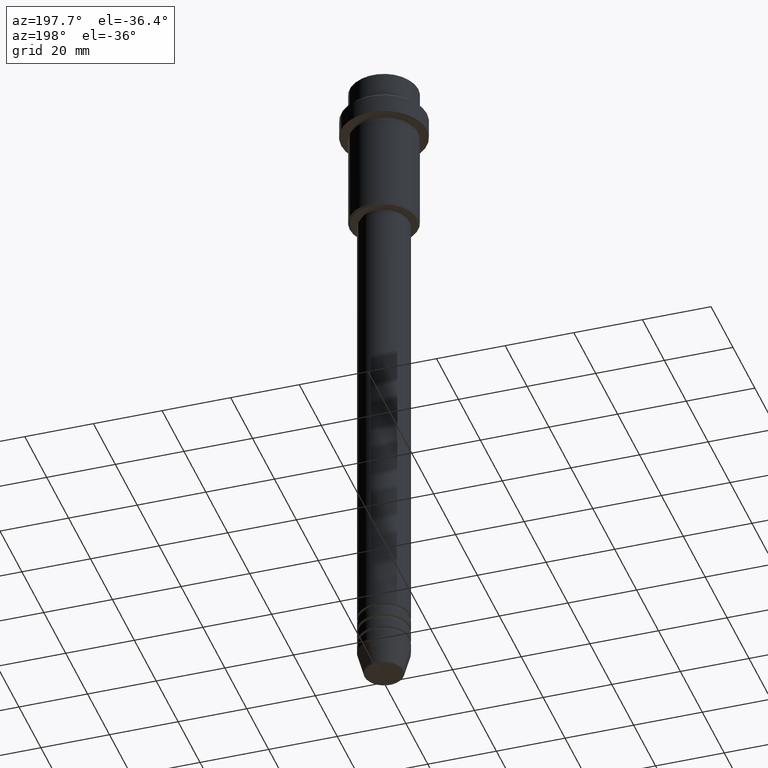
[diagram: clean part render]
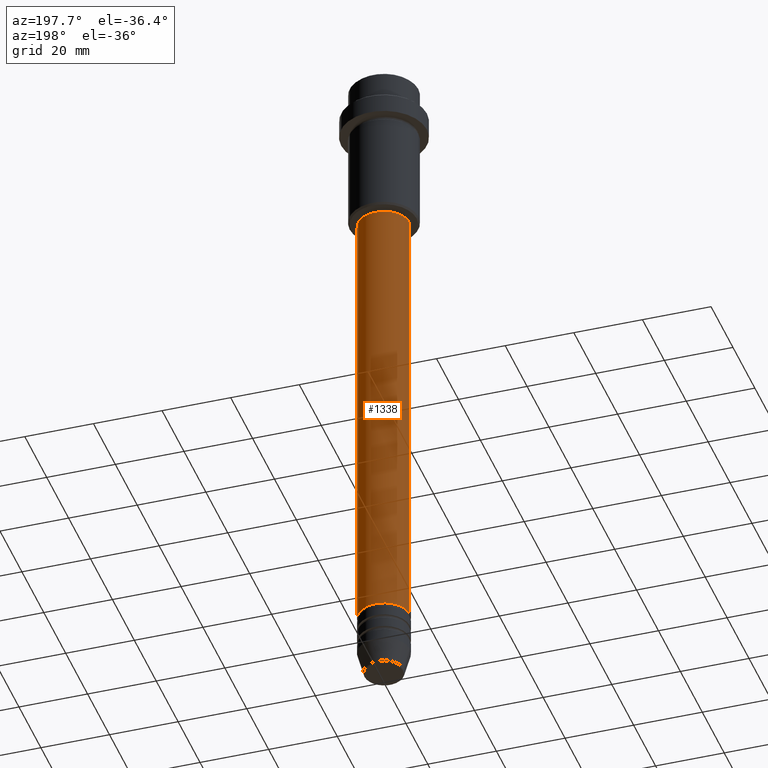
[diagram: same view with one face highlighted and labeled with its STEP entity id]
A machine part, auxiliary view. The second image highlights one B-rep face of the part: STEP entity #1338.
In plain terms, the highlighted cylindrical surface (edge-blend (fillet) strip) has radius 7.5 mm, axis along (-0, -0, 1).
Its self-contained STEP definition (entity closure, byte-faithful):
#18 = VERTEX_POINT ( 'NONE', #375 ) ;
#62 = CARTESIAN_POINT ( 'NONE',  ( 0.000000000000000000, 0.000000000000000000, -46.00000000000001421 ) ) ;
#76 = LINE ( 'NONE', #1397, #731 ) ;
#91 = CYLINDRICAL_SURFACE ( 'NONE', #1176, 7.500000000000000000 ) ;
#140 = ORIENTED_EDGE ( 'NONE', *, *, #947, .F. ) ;
#160 = CARTESIAN_POINT ( 'NONE',  ( 7.500000000000000000, 0.000000000000000000, -46.00000000000001421 ) ) ;
#287 = CIRCLE ( 'NONE', #506, 7.500000000000000000 ) ;
#340 = CARTESIAN_POINT ( 'NONE',  ( 7.500000000000000000, 0.000000000000000000, 0.000000000000000000 ) ) ;
#345 = EDGE_CURVE ( 'NONE', #1159, #565, #817, .T. ) ;
#375 = CARTESIAN_POINT ( 'NONE',  ( -7.500000000000000000, 9.184850993605147944E-16, -46.00000000000001421 ) ) ;
#436 = AXIS2_PLACEMENT_3D ( 'NONE', #1388, #643, #627 ) ;
#491 = DIRECTION ( 'NONE',  ( -0.000000000000000000, -0.000000000000000000, 1.000000000000000000 ) ) ;
#499 = DIRECTION ( 'NONE',  ( -0.000000000000000000, -0.000000000000000000, 1.000000000000000000 ) ) ;
#505 = ORIENTED_EDGE ( 'NONE', *, *, #345, .T. ) ;
#506 = AXIS2_PLACEMENT_3D ( 'NONE', #62, #491, #926 ) ;
#565 = VERTEX_POINT ( 'NONE', #727 ) ;
#570 = LINE ( 'NONE', #340, #820 ) ;
#590 = FACE_OUTER_BOUND ( 'NONE', #1411, .T. ) ;
#609 = CARTESIAN_POINT ( 'NONE',  ( 0.000000000000000000, 0.000000000000000000, 0.000000000000000000 ) ) ;
#627 = DIRECTION ( 'NONE',  ( 1.000000000000000000, 0.000000000000000000, 0.000000000000000000 ) ) ;
#643 = DIRECTION ( 'NONE',  ( -0.000000000000000000, -0.000000000000000000, 1.000000000000000000 ) ) ;
#655 = EDGE_CURVE ( 'NONE', #1159, #1294, #570, .T. ) ;
#727 = CARTESIAN_POINT ( 'NONE',  ( -7.500000000000000000, 9.184850993605147944E-16, -180.9999999999998863 ) ) ;
#731 = VECTOR ( 'NONE', #1279, 1000.000000000000000 ) ;
#817 = CIRCLE ( 'NONE', #436, 7.500000000000000000 ) ;
#820 = VECTOR ( 'NONE', #1001, 1000.000000000000000 ) ;
#857 = CARTESIAN_POINT ( 'NONE',  ( 7.500000000000000000, 0.000000000000000000, -180.9999999999998863 ) ) ;
#926 = DIRECTION ( 'NONE',  ( 1.000000000000000000, 0.000000000000000000, 0.000000000000000000 ) ) ;
#947 = EDGE_CURVE ( 'NONE', #1294, #18, #287, .T. ) ;
#1001 = DIRECTION ( 'NONE',  ( -0.000000000000000000, -0.000000000000000000, 1.000000000000000000 ) ) ;
#1048 = ORIENTED_EDGE ( 'NONE', *, *, #1362, .T. ) ;
#1056 = DIRECTION ( 'NONE',  ( 1.000000000000000000, 0.000000000000000000, 0.000000000000000000 ) ) ;
#1159 = VERTEX_POINT ( 'NONE', #857 ) ;
#1176 = AXIS2_PLACEMENT_3D ( 'NONE', #609, #499, #1056 ) ;
#1204 = ORIENTED_EDGE ( 'NONE', *, *, #655, .F. ) ;
#1279 = DIRECTION ( 'NONE',  ( -0.000000000000000000, -0.000000000000000000, 1.000000000000000000 ) ) ;
#1294 = VERTEX_POINT ( 'NONE', #160 ) ;
#1338 = ADVANCED_FACE ( 'NONE', ( #590 ), #91, .T. ) ;
#1362 = EDGE_CURVE ( 'NONE', #565, #18, #76, .T. ) ;
#1388 = CARTESIAN_POINT ( 'NONE',  ( 0.000000000000000000, 0.000000000000000000, -180.9999999999998863 ) ) ;
#1397 = CARTESIAN_POINT ( 'NONE',  ( -7.500000000000000000, 9.184850993605147944E-16, 0.000000000000000000 ) ) ;
#1411 = EDGE_LOOP ( 'NONE', ( #505, #1048, #140, #1204 ) ) ;